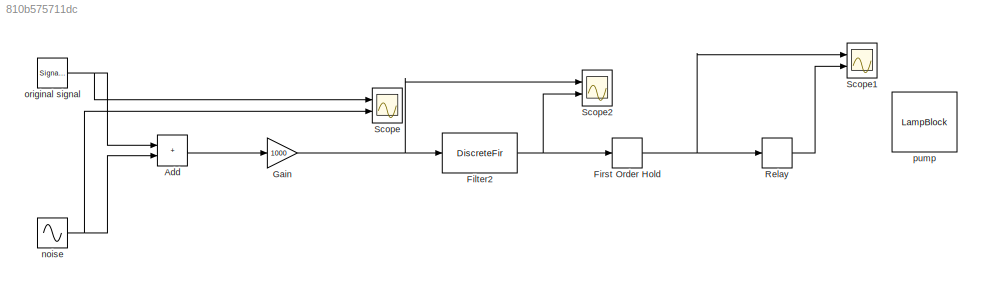
MODEL slx_810b575711dc
KIND model
CONFIG AbsTol = auto
CONFIG EnableMultiTasking = off
CONFIG FixedStep = auto
CONFIG MaxStep = auto
CONFIG MinStep = auto
CONFIG RelTol = 1e-3
CONFIG SampleTimeConstraint = Unconstrained
CONFIG SolverName = VariableStepAuto
CONFIG StartTime = 0.0
CONFIG StopTime = 10
BLOCK [Sum] Add
  IconShape = rectangular
  Ports = [2, 1]
BLOCK [DiscreteFir] Filter2
  Coefficients = [0.00571446346349022485 0.0241000741155928122 0.0579779198981282828 0.0982019482360174389 0.126085225982440707 0.126085225982440707 0.0982019482360174389 0.0579779198981282828 0.0241000741155928122 0.00571446346349022485]
  InputPortMap = u0
  InputProcessing = Columns as channels (frame based)
  OutputPortMap = o0
  Ports = [1, 1]
  Tag = BlockMethodSubSystem
BLOCK [FirstOrderHold] First Order Hold
  ErrorTolerance = inf
BLOCK [Gain] Gain
  Gain = 1000
BLOCK [Relay] Relay
  OffSwitchValue = 500
  OnSwitchValue = 501
BLOCK [Scope] Scope
  Floating = off
  NumInputPorts = 2
  Ports = [2]
  ScopeSpecificationString = Simulink.scopes.TimeScopeBlockCfg('CurrentConfiguration', extmgr.ConfigurationSet(extmgr.Configuration('Core','General UI',true),extmgr.Configuration('Core','Source UI',true),extmgr.Configuration('Sources','WiredSimulink',true),extmgr.Configuration('Visuals','Time Domain',true,'SerializedDisplays',{struct('MinYLimReal','-6.11117','MaxYLimReal','6.23457','YLabelReal','','MinYLimMag','0.00000','MaxY...<+1980ch>
BLOCK [Scope] Scope1
  Floating = off
  NumInputPorts = 2
  Ports = [2]
  ScopeSpecificationString = Simulink.scopes.TimeScopeBlockCfg('CurrentConfiguration', extmgr.ConfigurationSet(extmgr.Configuration('Core','General UI',true),extmgr.Configuration('Core','Source UI',true),extmgr.Configuration('Sources','WiredSimulink',true,'DataLoggingVariableName','ScopeData1'),extmgr.Configuration('Visuals','Time Domain',true,'SerializedDisplays',{struct('MinYLimReal','-3349.5822','MaxYLimReal','3578.91646',...<+2077ch>
BLOCK [Scope] Scope2
  Floating = off
  NumInputPorts = 2
  Ports = [2]
  ScopeSpecificationString = Simulink.scopes.TimeScopeBlockCfg('CurrentConfiguration', extmgr.ConfigurationSet(extmgr.Configuration('Core','General UI',true),extmgr.Configuration('Core','Source UI',true),extmgr.Configuration('Sources','WiredSimulink',true,'DataLoggingVariableName','ScopeData2'),extmgr.Configuration('Visuals','Time Domain',true,'SerializedDisplays',{struct('MinYLimReal','-18321.90282','MaxYLimReal','17040.7223...<+2124ch>
BLOCK [Sin] noise
  Amplitude = 10
  Frequency = 110
  Ports = [0, 1]
  SampleTime = 0
BLOCK [SignalGenerator] original signal
  Amplitude = 5
  Frequency = 5
  Ports = [0, 1]
  Units = rad/sec
  WaveForm = sawtooth
BLOCK [LampBlock] pump
LINE Add:1 -> Gain:1
NET Filter2:1 -> First Order Hold:1, Scope2:2
NET First Order Hold:1 -> Relay:1, Scope1:1
NET Gain:1 -> Filter2:1, Scope2:1
LINE Relay:1 -> Scope1:2
NET noise:1 -> Add:2, Scope:2
NET original signal:1 -> Add:1, Scope:1
note: NET lines group one-source signal fan-out (src -> all destinations, sorted); 1:1 wires keep LINE
